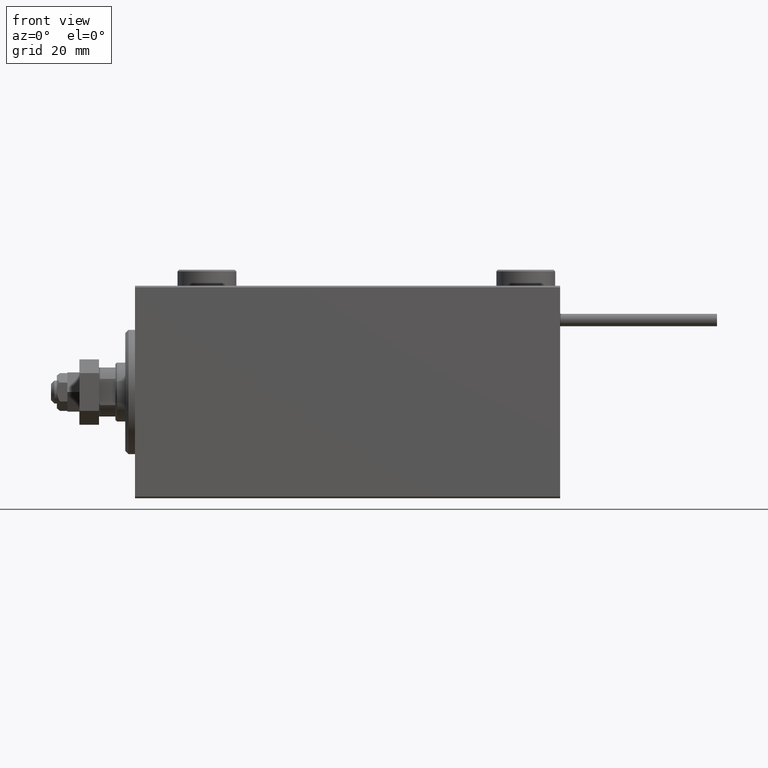
[diagram: clean part render]
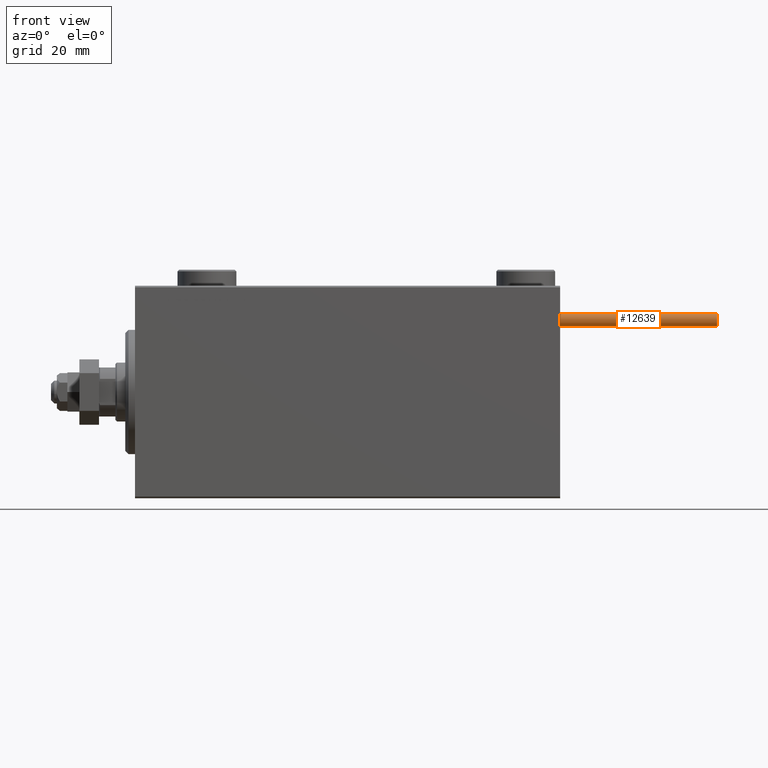
[diagram: same view with one face highlighted and labeled with its STEP entity id]
A machine part, front view. The second image highlights one B-rep face of the part: STEP entity #12639.
In plain terms, the highlighted cylindrical surface (edge-blend (fillet) strip) has radius 1.9 mm, axis along (-1, -0, -0).
Its self-contained STEP definition (entity closure, byte-faithful):
#809 = VERTEX_POINT ( 'NONE', #8392 ) ;
#2003 = VECTOR ( 'NONE', #8507, 1000.000000000000000 ) ;
#3209 = ORIENTED_EDGE ( 'NONE', *, *, #8957, .F. ) ;
#3421 = ORIENTED_EDGE ( 'NONE', *, *, #13425, .T. ) ;
#4081 = DIRECTION ( 'NONE',  ( -0.000000000000000000, -0.000000000000000000, -1.000000000000000000 ) ) ;
#4186 = DIRECTION ( 'NONE',  ( 1.000000000000000000, 0.000000000000000000, 0.000000000000000000 ) ) ;
#4273 = LINE ( 'NONE', #28199, #2003 ) ;
#5470 = CYLINDRICAL_SURFACE ( 'NONE', #45157, 1.899999999999999467 ) ;
#8392 = CARTESIAN_POINT ( 'NONE',  ( -1.899999999999999467, 0.000000000000000000, 48.00000000000000000 ) ) ;
#8507 = DIRECTION ( 'NONE',  ( -0.000000000000000000, -0.000000000000000000, -1.000000000000000000 ) ) ;
#8957 = EDGE_CURVE ( 'NONE', #16421, #30953, #52469, .T. ) ;
#9130 = CIRCLE ( 'NONE', #14251, 1.899999999999999467 ) ;
#9969 = DIRECTION ( 'NONE',  ( -0.000000000000000000, -0.000000000000000000, -1.000000000000000000 ) ) ;
#12639 = ADVANCED_FACE ( 'NONE', ( #17432 ), #5470, .T. ) ;
#13192 = DIRECTION ( 'NONE',  ( 0.000000000000000000, 0.000000000000000000, 1.000000000000000000 ) ) ;
#13425 = EDGE_CURVE ( 'NONE', #46453, #30953, #22254, .T. ) ;
#13763 = AXIS2_PLACEMENT_3D ( 'NONE', #48860, #13192, #4186 ) ;
#14251 = AXIS2_PLACEMENT_3D ( 'NONE', #20517, #29019, #20767 ) ;
#14410 = ORIENTED_EDGE ( 'NONE', *, *, #26902, .F. ) ;
#16421 = VERTEX_POINT ( 'NONE', #30532 ) ;
#17432 = FACE_OUTER_BOUND ( 'NONE', #48038, .T. ) ;
#20517 = CARTESIAN_POINT ( 'NONE',  ( 0.000000000000000000, 0.000000000000000000, 48.00000000000000000 ) ) ;
#20767 = DIRECTION ( 'NONE',  ( 1.000000000000000000, 0.000000000000000000, 0.000000000000000000 ) ) ;
#22254 = CIRCLE ( 'NONE', #13763, 1.899999999999999467 ) ;
#25665 = CARTESIAN_POINT ( 'NONE',  ( 0.000000000000000000, 0.000000000000000000, 48.00000000000000000 ) ) ;
#26902 = EDGE_CURVE ( 'NONE', #809, #16421, #9130, .T. ) ;
#28199 = CARTESIAN_POINT ( 'NONE',  ( -1.899999999999999467, 0.000000000000000000, 48.00000000000000000 ) ) ;
#29019 = DIRECTION ( 'NONE',  ( 0.000000000000000000, 0.000000000000000000, 1.000000000000000000 ) ) ;
#30532 = CARTESIAN_POINT ( 'NONE',  ( 1.899999999999999467, 2.326828918379970872E-16, 48.00000000000000000 ) ) ;
#30953 = VERTEX_POINT ( 'NONE', #47809 ) ;
#33656 = DIRECTION ( 'NONE',  ( -1.000000000000000000, 0.000000000000000000, 0.000000000000000000 ) ) ;
#35775 = VECTOR ( 'NONE', #4081, 1000.000000000000000 ) ;
#35977 = CARTESIAN_POINT ( 'NONE',  ( 1.899999999999999467, 2.326828918379970872E-16, 48.00000000000000000 ) ) ;
#44114 = ORIENTED_EDGE ( 'NONE', *, *, #49576, .T. ) ;
#45157 = AXIS2_PLACEMENT_3D ( 'NONE', #25665, #9969, #33656 ) ;
#46453 = VERTEX_POINT ( 'NONE', #51675 ) ;
#47809 = CARTESIAN_POINT ( 'NONE',  ( 1.899999999999999467, 2.326828918379970872E-16, 0.000000000000000000 ) ) ;
#48038 = EDGE_LOOP ( 'NONE', ( #3209, #14410, #44114, #3421 ) ) ;
#48860 = CARTESIAN_POINT ( 'NONE',  ( 0.000000000000000000, 0.000000000000000000, 0.000000000000000000 ) ) ;
#49576 = EDGE_CURVE ( 'NONE', #809, #46453, #4273, .T. ) ;
#51675 = CARTESIAN_POINT ( 'NONE',  ( -1.899999999999999467, 0.000000000000000000, 0.000000000000000000 ) ) ;
#52469 = LINE ( 'NONE', #35977, #35775 ) ;